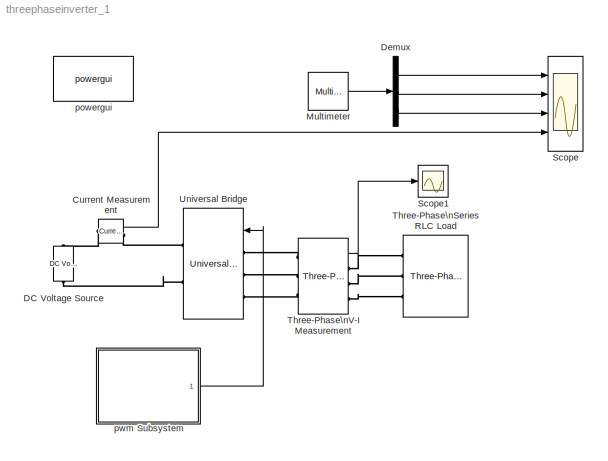
MODEL threephaseinverter_1
KIND model
BLOCK [Reference] Current Measurement  REF=powerlib/Measurements/Current Measurement
  OutputType = Complex
  PSBequivalent = 0
  PhasorSimulation = off
  Ports = [0, 1, 0, 0, 0, 1, 1]
  ShowPortLabels = on
  SourceBlock = powerlib/Measurements/Current Measurement
  SourceType = Current Measurement
BLOCK [Reference] DC Voltage Source  REF=powerlib/Electrical\nSources/DC Voltage Source
  Amplitude = 300
  Measurements = None
  Ports = [0, 0, 0, 0, 0, 1, 1]
  ShowPortLabels = on
  SourceBlock = powerlib/Electrical\nSources/DC Voltage Source
  SourceType = DC Voltage Source
BLOCK [Demux] Demux
  DisplayOption = bar
  Outputs = 3
  Ports = [1, 3]
BLOCK [Reference] Multimeter  REF=powerlib/Measurements/Multimeter
  AxesSetting = [0,0.1,-100,100]
  Display = 0
  Gain = [1 1 1]
  L = 6
  OutputType = Complex
  PSBOutputType = 1
  PSBequivalent = 0
  PhasorSimulation = off
  Ports = [0, 1]
  SavedBlockNames = -11
  ShowPortLabels = on
  SourceBlock = powerlib/Measurements/Multimeter
  SourceType = MultimeterPSB
  sel = [1 4 5]
  yselected = {'Uag: Three-Phase Series RLC Load','Iag: Three-Phase Series RLC Load','Ibg: Three-Phase Series RLC Load'};
BLOCK [Scope] Scope
  DataFormat = StructureWithTime
  LimitDataPoints = off
  NumInputPorts = 4
  Ports = [4]
  SaveName = t_Data
  SaveToWorkspace = on
  TimeRange = 0.06
  YMax = 200~5~5~4
  YMin = -200~-5~-5~0
BLOCK [Scope] Scope1
  DataFormat = Array
  LimitDataPoints = off
  NumInputPorts = 1
  Ports = [1]
  SaveToWorkspace = on
BLOCK [Reference] Three-Phase\nSeries RLC Load  REF=powerlib/Elements/Three-Phase\nSeries RLC Load
  ActivePower = 1e3
  AttributesFormatString = \\n
  CapacitivePower = 0
  Configuration = Y (grounded)
  InductivePower = 500
  LConnTagsString = A|B|C
  LeftPortType = p1
  Measurements = Branch voltages and currents
  NominalFrequency = 50
  NominalVoltage = 208
  PhysicalDomain = powersysdomain
  Ports = [0, 0, 0, 0, 0, 3]
  RightPortType = p1
  SourceBlock = powerlib/Elements/Three-Phase\nSeries RLC Load
  SourceType = Three-Phase Series RLC Load
  SubClassName = unknown
BLOCK [Reference] Three-Phase\nV-I Measurement  REF=powerlib/Measurements/Three-Phase\nV-I Measurement
  CurrentMeasurement = yes
  Ipu = off
  LabelI = Iabc
  LabelV = Vabc
  OutputType = Complex
  PSBequivalent = 0
  Pbase = 100e6
  PhasorSimulation = off
  Ports = [0, 1, 0, 0, 0, 3, 3]
  SetLabelI = off
  SetLabelV = on
  ShowPortLabels = on
  SourceBlock = powerlib/Measurements/Three-Phase\nV-I Measurement
  SourceType = Three-Phase VI Measurement
  Vbase = 500e3
  VoltageMeasurement = phase-to-ground
  Vpu = on
BLOCK [Reference] Universal Bridge  REF=powerlib/Power\nElectronics/Universal Bridge
  Arms = 3
  Device = MOSFET / Diodes
  ForwardVoltage = 0
  ForwardVoltages = [  0  0  ]
  GTOparameters = [ 10e-6 , 20e-6 ]
  IGBTparameters = [ 1e-6 , 2e-6 ]
  Lon = 0
  Measurements = None
  Ports = [1, 0, 0, 0, 0, 3, 2]
  Ron = 1e-3
  ShowPortLabels = on
  SnubberCapacitance = inf
  SnubberResistance = 1e5
  SourceBlock = powerlib/Power\nElectronics/Universal Bridge
  SourceType = Universal Bridge
BLOCK [Reference] powergui  REF=powerlib/powergui
  DisplayStyle = 1
  Frange = [0:2:500]
  FreqAxis = on
  MaxFrequency = 1000
  Ports = []
  Priority = 2
  RmsSteady = 1
  ShowPortLabels = on
  SourceBlock = powerlib/powergui
  SourceType = PSB option menu block
  StartTime = 0.0
  Ts = 5e-7
  Xlog = on
  Ylog = off
  ZoomFFT = on
  cycles = 2
  display = off
  echomessages = off
  frequency = 50
  frequencyindice = 1
  frequencyindicesteady = 1
  fundamental = 50
  methode = off
  save = off
  structure = t_Data
  variable = ZData
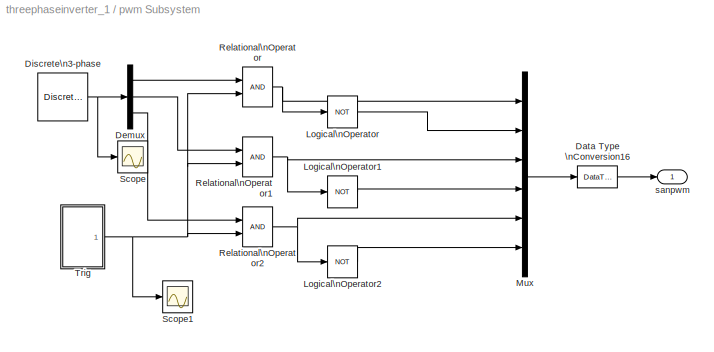
BLOCK [SubSystem] pwm Subsystem
  MaskEnableString = on
  MaskIconFrame = on
  MaskIconOpaque = on
  MaskIconRotate = none
  MaskIconUnits = autoscale
  MaskPromptString = sampling time(s)
  MaskStyleString = edit
  MaskToolTipString = on
  MaskTunableValueString = on
  MaskValueString = 5e-7
  MaskVariables = Ts=@1;
  MaskVisibilityString = on
  MinAlgLoopOccurrences = off
  Ports = [0, 1]
  RTWSystemCode = Auto
  TreatAsAtomicUnit = off
BLOCK [DataTypeConversion] pwm Subsystem/Data Type \nConversion16
  OutDataTypeMode = double
BLOCK [Demux] pwm Subsystem/Demux
  DisplayOption = bar
  Outputs = 3
  Ports = [1, 3]
BLOCK [Reference] pwm Subsystem/Discrete\n3-phase   REF=powerlib_extras/Discrete \nControl Blocks/Discrete\n3-phase \nProgrammable Source
  HarmonicGeneration = off
  Par_HarmoA = [3 0.2 -25 0]
  Par_HarmoB = [2 0.15 35 2]
  Par_Timing_Harmo = [0.05  3]
  Par_Timing_Variation = [0.1 1.2]
  Par_Vps = [0.8 0 50]
  Ports = [0, 1]
  ShowPortLabels = on
  SinglePhase = on
  SourceBlock = powerlib_extras/Discrete \nControl Blocks/Discrete\n3-phase \nProgrammable Source
  SourceType = Discrete 3-phase Programmable Source
  Ts = Ts
  VariationEntity = None
  VariationFreq = 2
  VariationMag = 0.3
  VariationRate = 10
  VariationStep = -0.5
  VariationType = Step
  Xtime = [0 0.1 0.15 0.2]
  Yampli = [1 0.8 1.2 1.0]
BLOCK [Logic] pwm Subsystem/Logical\nOperator
  AllPortsSameDT = off
  Inputs = 1
  Operator = NOT
  OutDataTypeMode = Boolean
  Ports = [1, 1]
BLOCK [Logic] pwm Subsystem/Logical\nOperator1
  AllPortsSameDT = off
  Inputs = 1
  Operator = NOT
  OutDataTypeMode = Boolean
  Ports = [1, 1]
BLOCK [Logic] pwm Subsystem/Logical\nOperator2
  AllPortsSameDT = off
  Inputs = 1
  Operator = NOT
  OutDataTypeMode = Boolean
  Ports = [1, 1]
BLOCK [Mux] pwm Subsystem/Mux
  DisplayOption = bar
  Inputs = 6
  Ports = [6, 1]
BLOCK [RelationalOperator] pwm Subsystem/Relational\nOperator
  InputSameDT = off
  LogicOutDataTypeMode = Boolean
BLOCK [RelationalOperator] pwm Subsystem/Relational\nOperator1
  InputSameDT = off
  LogicOutDataTypeMode = Boolean
BLOCK [RelationalOperator] pwm Subsystem/Relational\nOperator2
  InputSameDT = off
  LogicOutDataTypeMode = Boolean
BLOCK [Scope] pwm Subsystem/Scope
  DataFormat = Array
  LimitDataPoints = off
  NumInputPorts = 1
  Ports = [1]
  SaveName = ScopeData1
  SaveToWorkspace = on
BLOCK [Scope] pwm Subsystem/Scope1
  DataFormat = Array
  LimitDataPoints = off
  NumInputPorts = 1
  Ports = [1]
  SaveName = ScopeData2
  SaveToWorkspace = on
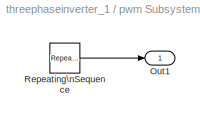
BLOCK [SubSystem] pwm Subsystem/Trig
  MaskEnableString = on
  MaskIconFrame = on
  MaskIconOpaque = on
  MaskIconRotate = none
  MaskIconUnits = autoscale
  MaskPromptString = Carrier Frequency(Hz)
  MaskStyleString = edit
  MaskToolTipString = on
  MaskTunableValueString = on
  MaskValueString = 1500
  MaskVariables = Fc=@1;
  MaskVisibilityString = on
  MinAlgLoopOccurrences = off
  Ports = [0, 1]
  RTWSystemCode = Auto
  TreatAsAtomicUnit = off
BLOCK [Outport] pwm Subsystem/Trig/Out1
  BusOutputAsStruct = off
  IconDisplay = Port number
BLOCK [Reference] pwm Subsystem/Trig/Repeating\nSequence  REF=simulink/Sources/Repeating\nSequence
  Ports = [0, 1]
  ShowPortLabels = on
  SourceBlock = simulink/Sources/Repeating\nSequence
  SourceType = Repeating table
  rep_seq_t = [0 1/Fc/4 3/Fc/4 1/Fc]
  rep_seq_y = [0 1 -1 0]
BLOCK [Outport] pwm Subsystem/sanpwm
  BusOutputAsStruct = off
  IconDisplay = Port number
LINE Current Measurement:1 -> Scope:4
LINE Demux:1 -> Scope:1
LINE Demux:2 -> Scope:2
LINE Demux:3 -> Scope:3
LINE Multimeter:1 -> Demux:1
LINE Three-Phase\nV-I Measurement:1 -> Scope1:1
LINE pwm Subsystem/Data Type \nConversion16:1 -> pwm Subsystem/sanpwm:1
LINE pwm Subsystem/Demux:1 -> pwm Subsystem/Relational\nOperator:1
LINE pwm Subsystem/Demux:2 -> pwm Subsystem/Relational\nOperator1:1
LINE pwm Subsystem/Demux:3 -> pwm Subsystem/Relational\nOperator2:1
NET pwm Subsystem/Discrete\n3-phase :1 -> pwm Subsystem/Demux:1, pwm Subsystem/Scope:1
LINE pwm Subsystem/Logical\nOperator1:1 -> pwm Subsystem/Mux:4
LINE pwm Subsystem/Logical\nOperator2:1 -> pwm Subsystem/Mux:6
LINE pwm Subsystem/Logical\nOperator:1 -> pwm Subsystem/Mux:2
LINE pwm Subsystem/Mux:1 -> pwm Subsystem/Data Type \nConversion16:1
NET pwm Subsystem/Relational\nOperator1:1 -> pwm Subsystem/Logical\nOperator1:1, pwm Subsystem/Mux:3
NET pwm Subsystem/Relational\nOperator2:1 -> pwm Subsystem/Logical\nOperator2:1, pwm Subsystem/Mux:5
NET pwm Subsystem/Relational\nOperator:1 -> pwm Subsystem/Logical\nOperator:1, pwm Subsystem/Mux:1
LINE pwm Subsystem/Trig/Repeating\nSequence:1 -> pwm Subsystem/Trig/Out1:1
NET pwm Subsystem/Trig:1 -> pwm Subsystem/Relational\nOperator1:2, pwm Subsystem/Relational\nOperator2:2, pwm Subsystem/Relational\nOperator:2, pwm Subsystem/Scope1:1
LINE pwm Subsystem:1 -> Universal Bridge:1
PLINE Current Measurement:LConn1 -- DC Voltage Source:RConn1
PLINE Current Measurement:RConn1 -- Universal Bridge:RConn1
PLINE DC Voltage Source:LConn1 -- Universal Bridge:RConn2
PLINE Three-Phase\nSeries RLC Load:LConn1 -- Three-Phase\nV-I Measurement:RConn1
PLINE Three-Phase\nSeries RLC Load:LConn2 -- Three-Phase\nV-I Measurement:RConn2
PLINE Three-Phase\nSeries RLC Load:LConn3 -- Three-Phase\nV-I Measurement:RConn3
PLINE Three-Phase\nV-I Measurement:LConn1 -- Universal Bridge:LConn1
PLINE Three-Phase\nV-I Measurement:LConn2 -- Universal Bridge:LConn2
PLINE Three-Phase\nV-I Measurement:LConn3 -- Universal Bridge:LConn3
note: NET lines group one-source signal fan-out (src -> all destinations, sorted); 1:1 wires keep LINE
